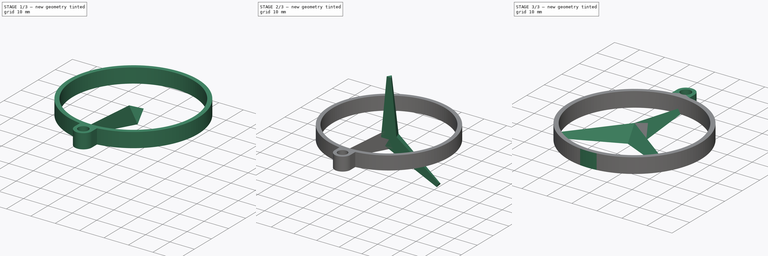
[diagram: build sequence overview — one tinted view per stage of 3, left to right]
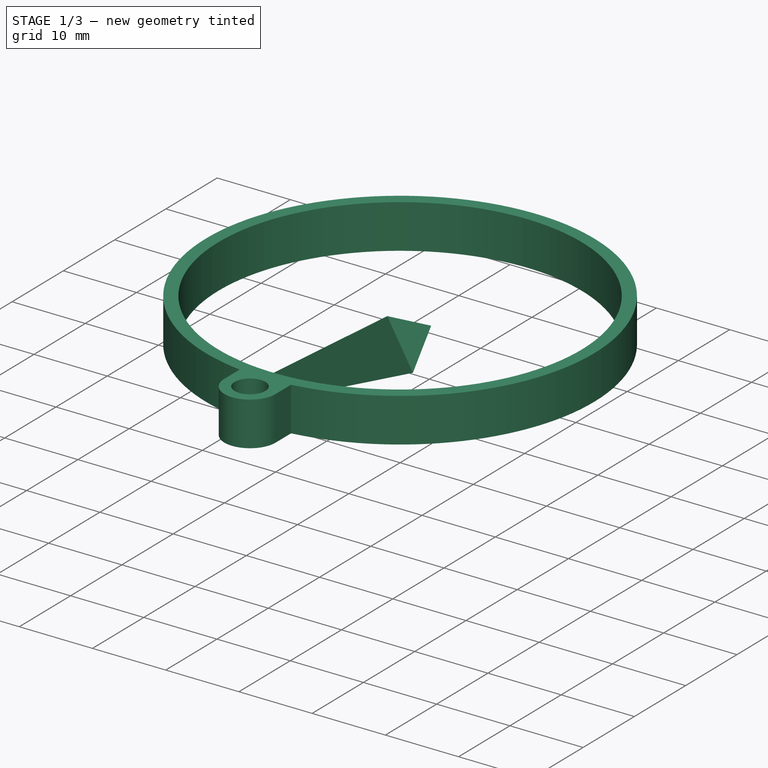
[diagram: stage 1 of 3 — iso view after this stage's code; geometry added in this stage tinted green]
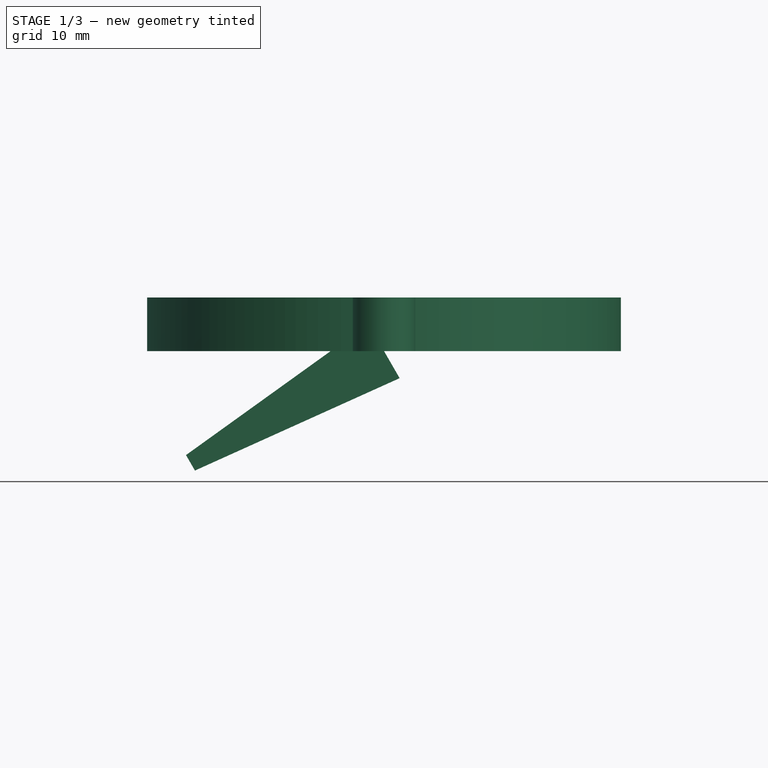
[diagram: stage 1 of 3 — front view after this stage's code; geometry added in this stage tinted green]
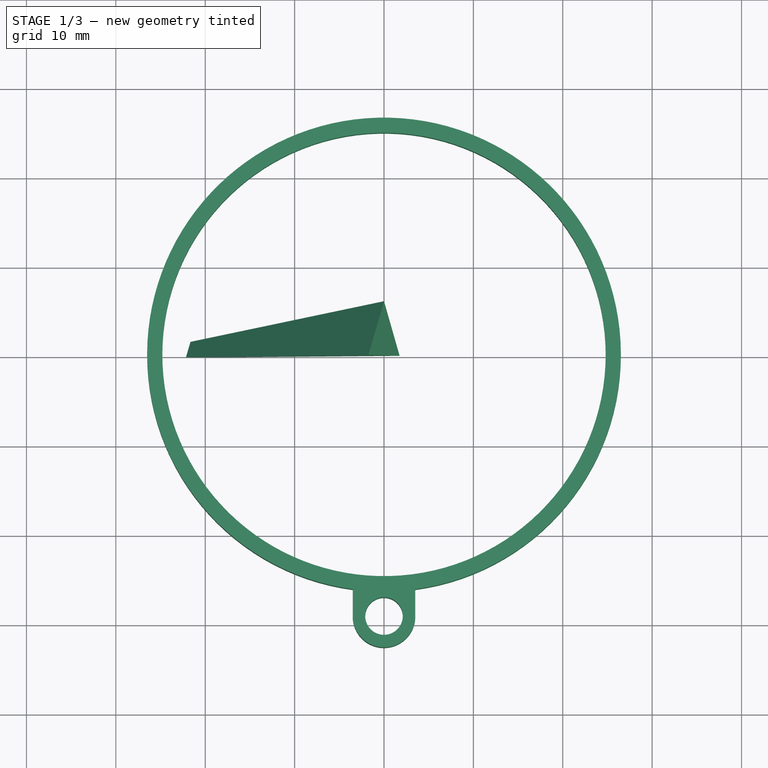
[diagram: stage 1 of 3 — top view after this stage's code; geometry added in this stage tinted green]
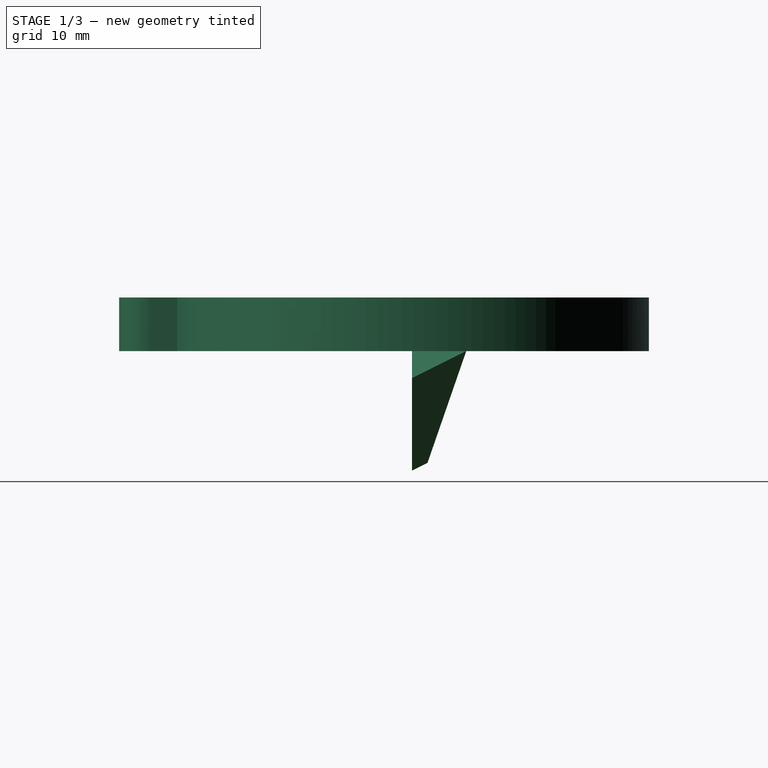
[diagram: stage 1 of 3 — right view after this stage's code; geometry added in this stage tinted green]
FCSTD DOCUMENT  (FreeCAD 0.14R3700 (Git))
Label: Mercedes-Benz
License: CC-BY 3.0
LicenseURL: http://creativecommons.org/licenses/by/3.0/
objects: Sketcher::SketchObject×7, Part::Loft×3, Part::Feature×3, Part::MultiFuse×2, App::DocumentObjectGroup×2, PartDesign::Pad×1
note: 17 computed .brp shape members not serialized (recipe doc carries the construction recipe); baked Part::Feature solids carry a one-line shape summary decoded from their .brp

FEATURE [Sketcher::SketchObject] Sketch004
  Placement = pos=(0,0,25) rot=(0,0,1;0rad)
  sketch-geometry (3):
    g0: LineSegment StartX=-1 StartY=0 StartZ=0 EndX=1 EndY=0 EndZ=0
    g1: LineSegment StartX=1 StartY=0 StartZ=0 EndX=0 EndY=1.73205 EndZ=0
    g2: LineSegment StartX=0 StartY=1.73205 StartZ=0 EndX=-1 EndY=0 EndZ=0
  constraints (9):
    c: Coincident(g0,g1)
    c: Coincident(g1,g2)
    c: Coincident(g2,g0)
    c: Horizontal(g0)
    c: PointOnObject(g1,g-2)
    c: Symmetric(g0,g0,g-2)
    c: Equal(g2,g0)
    c: PointOnObject(g-1,g0)
    c: DistanceX(g0) = 2
FEATURE [Sketcher::SketchObject] Sketch005
  sketch-geometry (3):
    g0: LineSegment StartX=-3.5 StartY=0 StartZ=0 EndX=3.5 EndY=0 EndZ=0
    g1: LineSegment StartX=3.5 StartY=0 StartZ=0 EndX=0 EndY=6.06218 EndZ=0
    g2: LineSegment StartX=0 StartY=6.06218 StartZ=0 EndX=-3.5 EndY=0 EndZ=0
  constraints (9):
    c: Coincident(g0,g1)
    c: Coincident(g1,g2)
    c: Coincident(g2,g0)
    c: Horizontal(g0)
    c: PointOnObject(g1,g-2)
    c: Symmetric(g0,g0,g-2)
    c: PointOnObject(g-1,g0)
    c: Equal(g2,g0)
    c: DistanceX(g0) = 7
FEATURE [Part::Loft] Loft002  label="Arm3"
  Closed = false
  Placement = pos=(0,0,0) rot=(0,-1,0;2.0944rad)
  Ruled = false
  Sections = -> [Sketch005,Sketch004]
  Solid = true
FEATURE [Sketcher::SketchObject] Sketch006
  sketch-geometry (6):
    g0: Circle CenterX=0 CenterY=0 CenterZ=0 NormalX=0 NormalY=0 NormalZ=1 Radius=24.8
    g1: ArcOfCircle CenterX=0 CenterY=-29.2679 CenterZ=0 NormalX=0 NormalY=0 NormalZ=1 Radius=3.5 StartAngle=3.14159 EndAngle=6.28319
    g2: LineSegment StartX=-3.5 StartY=-26.2679 StartZ=0 EndX=-3.5 EndY=-29.2679 EndZ=0
    g3: LineSegment StartX=3.5 StartY=-26.2679 StartZ=0 EndX=3.5 EndY=-29.2679 EndZ=0
    g4: ArcOfCircle CenterX=0 CenterY=0 CenterZ=0 NormalX=0 NormalY=0 NormalZ=1 Radius=26.5 StartAngle=4.84485 EndAngle=10.8631
    g5: Circle CenterX=0 CenterY=-29.2679 CenterZ=0 NormalX=0 NormalY=0 NormalZ=1 Radius=2.1
  constraints (17):
    c: Coincident(g0,g-1)
    c: Radius(g0) = 24.8
    c: Radius(g1) = 3.5
    c: Vertical(g2)
    c: Vertical(g3)
    c: Symmetric(g1,g1,g-2)
    c: Coincident(g2,g1)
    c: Coincident(g3,g1)
    c: Equal(g2,g3)
    c: DistanceY(g2) = -3
    c: DistanceY(g1,g2) = 3
    c: Coincident(g-1,g4)
    c: Coincident(g3,g4)
    c: Coincident(g4,g2)
    c: Radius(g4) = 26.5
    c: Radius(g5) = 2.1
    c: Coincident(g5,g1)
FEATURE [PartDesign::Pad] Pad  label="Exterior"
  Length = 6
  Length2 = 100
  Sketch = -> Sketch006
  Type = 0
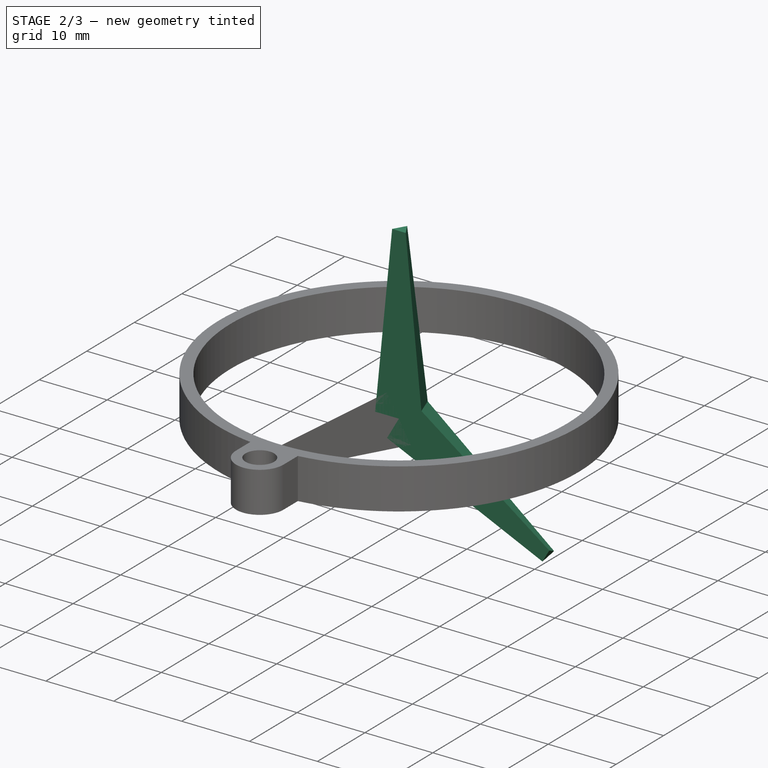
[diagram: stage 2 of 3 — iso view after this stage's code; geometry added in this stage tinted green]
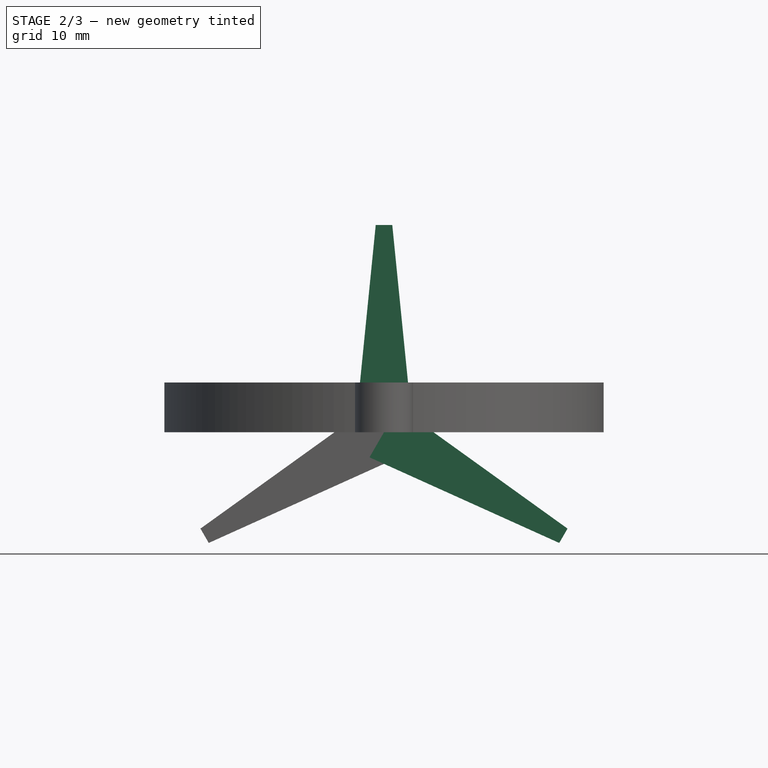
[diagram: stage 2 of 3 — front view after this stage's code; geometry added in this stage tinted green]
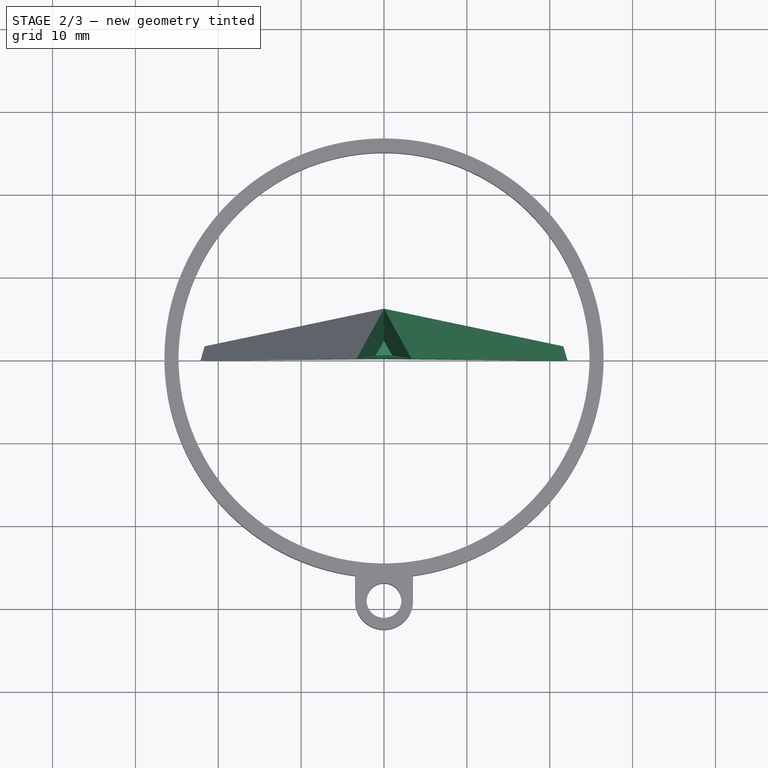
[diagram: stage 2 of 3 — top view after this stage's code; geometry added in this stage tinted green]
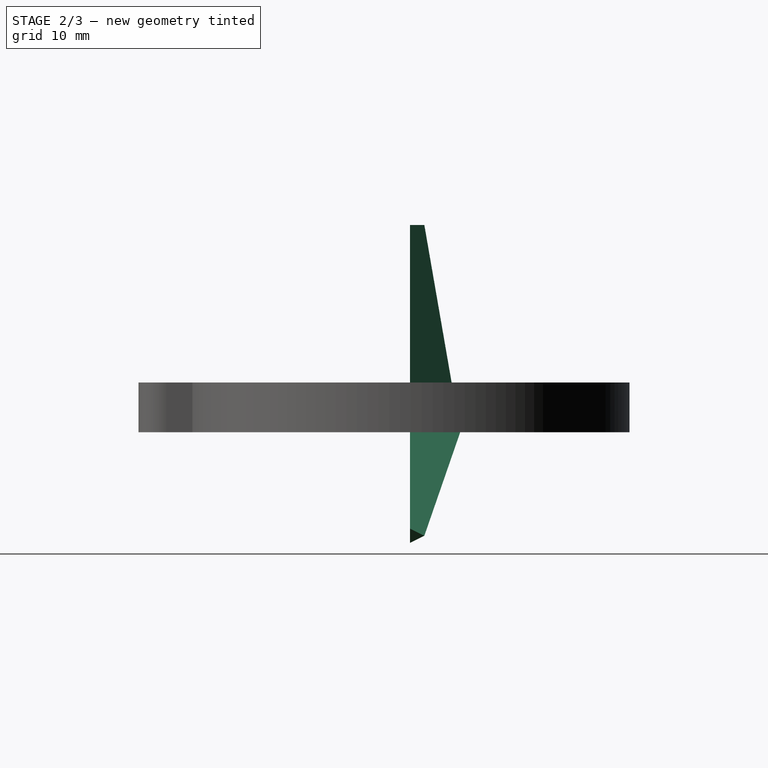
[diagram: stage 2 of 3 — right view after this stage's code; geometry added in this stage tinted green]
FEATURE [Sketcher::SketchObject] Sketch
  sketch-geometry (3):
    g0: LineSegment StartX=-3.5 StartY=0 StartZ=0 EndX=3.5 EndY=0 EndZ=0
    g1: LineSegment StartX=3.5 StartY=0 StartZ=0 EndX=0 EndY=6.06218 EndZ=0
    g2: LineSegment StartX=0 StartY=6.06218 StartZ=0 EndX=-3.5 EndY=0 EndZ=0
  constraints (9):
    c: Coincident(g0,g1)
    c: Coincident(g1,g2)
    c: Coincident(g2,g0)
    c: Horizontal(g0)
    c: PointOnObject(g1,g-2)
    c: Symmetric(g0,g0,g-2)
    c: PointOnObject(g-1,g0)
    c: Equal(g2,g0)
    c: DistanceX(g0) = 7
FEATURE [Sketcher::SketchObject] Sketch001
  Placement = pos=(0,0,25) rot=(0,0,1;0rad)
  sketch-geometry (3):
    g0: LineSegment StartX=-1 StartY=0 StartZ=0 EndX=1 EndY=0 EndZ=0
    g1: LineSegment StartX=1 StartY=0 StartZ=0 EndX=0 EndY=1.73205 EndZ=0
    g2: LineSegment StartX=0 StartY=1.73205 StartZ=0 EndX=-1 EndY=0 EndZ=0
  constraints (9):
    c: Coincident(g0,g1)
    c: Coincident(g1,g2)
    c: Coincident(g2,g0)
    c: Horizontal(g0)
    c: PointOnObject(g1,g-2)
    c: Symmetric(g0,g0,g-2)
    c: Equal(g2,g0)
    c: PointOnObject(g-1,g0)
    c: DistanceX(g0) = 2
FEATURE [Part::Loft] Loft  label="Arm1"
  Closed = false
  Ruled = false
  Sections = -> [Sketch,Sketch001]
  Solid = true
FEATURE [Sketcher::SketchObject] Sketch002
  Placement = pos=(0,0,25) rot=(0,0,1;0rad)
  sketch-geometry (3):
    g0: LineSegment StartX=-1 StartY=0 StartZ=0 EndX=1 EndY=0 EndZ=0
    g1: LineSegment StartX=1 StartY=0 StartZ=0 EndX=0 EndY=1.73205 EndZ=0
    g2: LineSegment StartX=0 StartY=1.73205 StartZ=0 EndX=-1 EndY=0 EndZ=0
  constraints (9):
    c: Coincident(g0,g1)
    c: Coincident(g1,g2)
    c: Coincident(g2,g0)
    c: Horizontal(g0)
    c: PointOnObject(g1,g-2)
    c: Symmetric(g0,g0,g-2)
    c: Equal(g2,g0)
    c: PointOnObject(g-1,g0)
    c: DistanceX(g0) = 2
FEATURE [Sketcher::SketchObject] Sketch003
  sketch-geometry (3):
    g0: LineSegment StartX=-3.5 StartY=0 StartZ=0 EndX=3.5 EndY=0 EndZ=0
    g1: LineSegment StartX=3.5 StartY=0 StartZ=0 EndX=0 EndY=6.06218 EndZ=0
    g2: LineSegment StartX=0 StartY=6.06218 StartZ=0 EndX=-3.5 EndY=0 EndZ=0
  constraints (9):
    c: Coincident(g0,g1)
    c: Coincident(g1,g2)
    c: Coincident(g2,g0)
    c: Horizontal(g0)
    c: PointOnObject(g1,g-2)
    c: Symmetric(g0,g0,g-2)
    c: PointOnObject(g-1,g0)
    c: Equal(g2,g0)
    c: DistanceX(g0) = 7
FEATURE [Part::Loft] Loft001  label="Arm2"
  Closed = false
  Placement = pos=(0,0,0) rot=(0,1,0;2.0944rad)
  Ruled = false
  Sections = -> [Sketch003,Sketch002]
  Solid = true
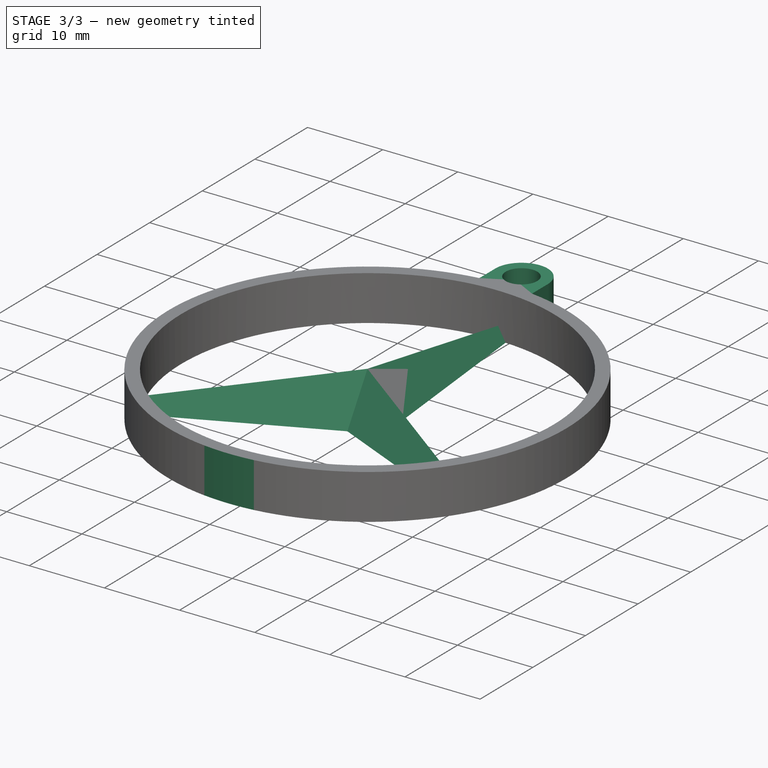
[diagram: stage 3 of 3 — iso view after this stage's code; geometry added in this stage tinted green]
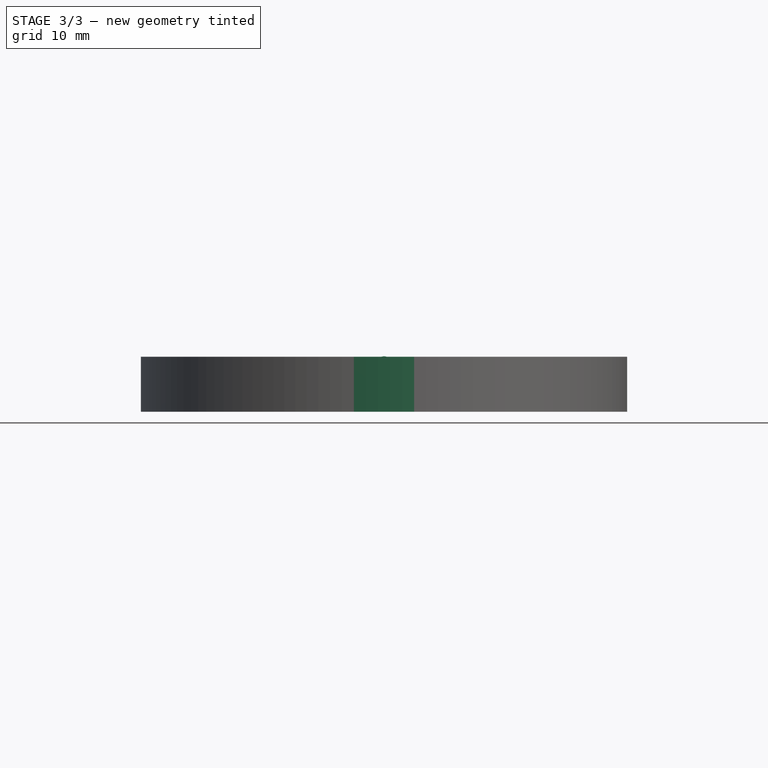
[diagram: stage 3 of 3 — front view after this stage's code; geometry added in this stage tinted green]
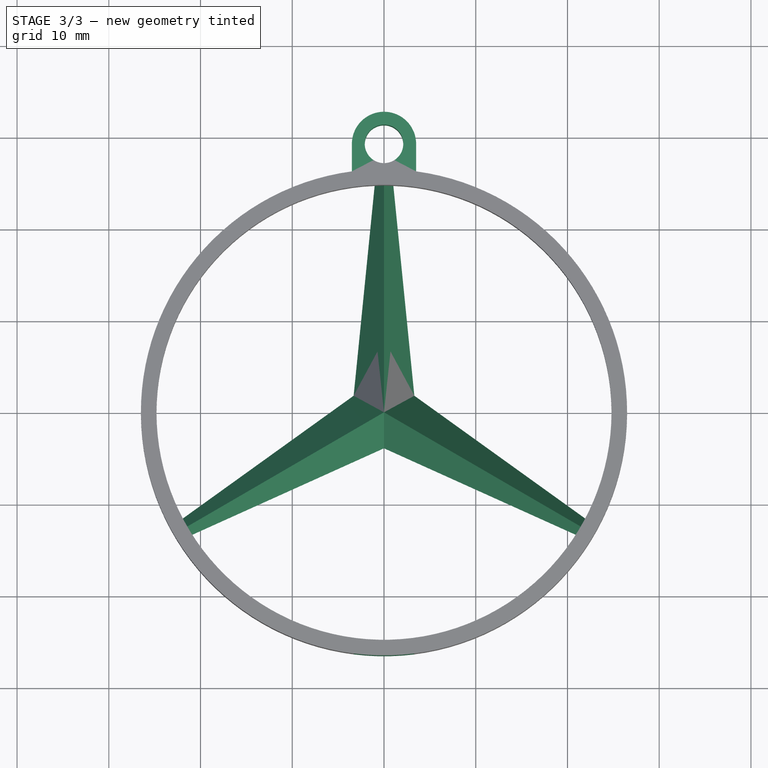
[diagram: stage 3 of 3 — top view after this stage's code; geometry added in this stage tinted green]
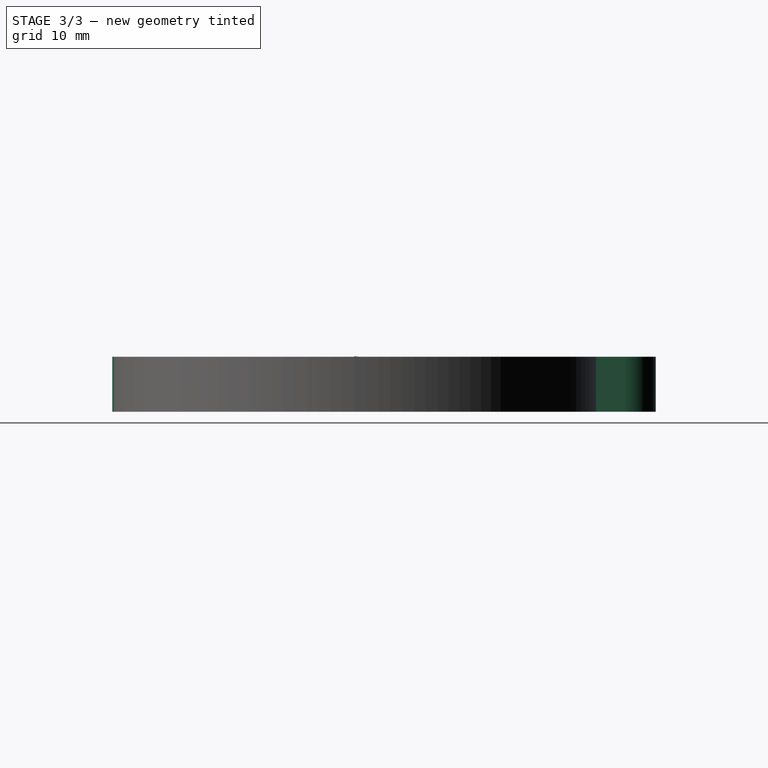
[diagram: stage 3 of 3 — right view after this stage's code; geometry added in this stage tinted green]
FEATURE [Part::MultiFuse] Fusion  label="Arms"
  Placement = pos=(0,0,0) rot=(1,0,0;1.5708rad)
  Shapes = -> [Loft,Loft001,Loft002]
FEATURE [Part::MultiFuse] Fusion001  label="Key-chain"
  Placement = pos=(0,0,0) rot=(0,0,1;3.14159rad)
  Shapes = -> [Pad,Fusion]
FEATURE [App::DocumentObjectGroup] Grupo  label="src"
  Group = -> [Fusion001]
FEATURE [Part::Feature] Cut  label="key-model"
  Placement = pos=(-5.46976,31.0266,0) rot=(0,0,1;0.517888rad)
  shape: bbox 49.82 x 36.6 x 2.3 mm, 44 faces (baked)
FEATURE [Part::Feature] Sweep  label="key-ring-model"
  Placement = pos=(-1.2,24.7546,1.6391) rot=(0.333333,0.881918,0.333333;1.69612rad)
  shape: bbox 3.31 x 27.02 x 26.33 mm, 4 faces (baked)
FEATURE [Part::Feature] Part__Feature  label="Mercedes-Benz-key-chain"
  Placement = pos=(0,-13,0) rot=(0,0,1;3.14159rad)
  shape: bbox 53 x 59.27 x 6.062 mm, 23 faces (baked)
FEATURE [App::DocumentObjectGroup] Grupo001  label="Assembly"
  Group = -> [Cut,Sweep,Part__Feature]
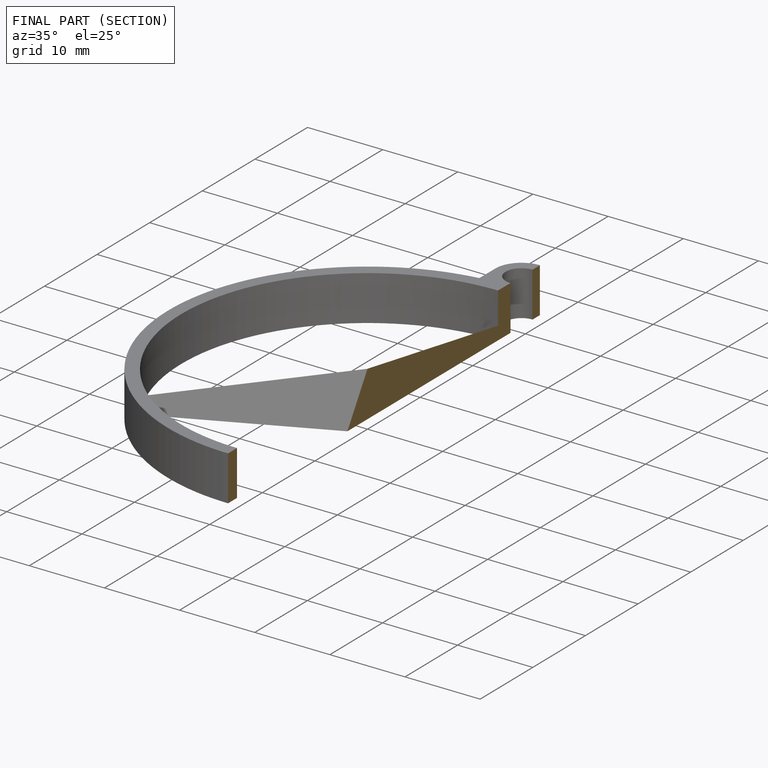
[diagram: finished part — half-section view (interior)]
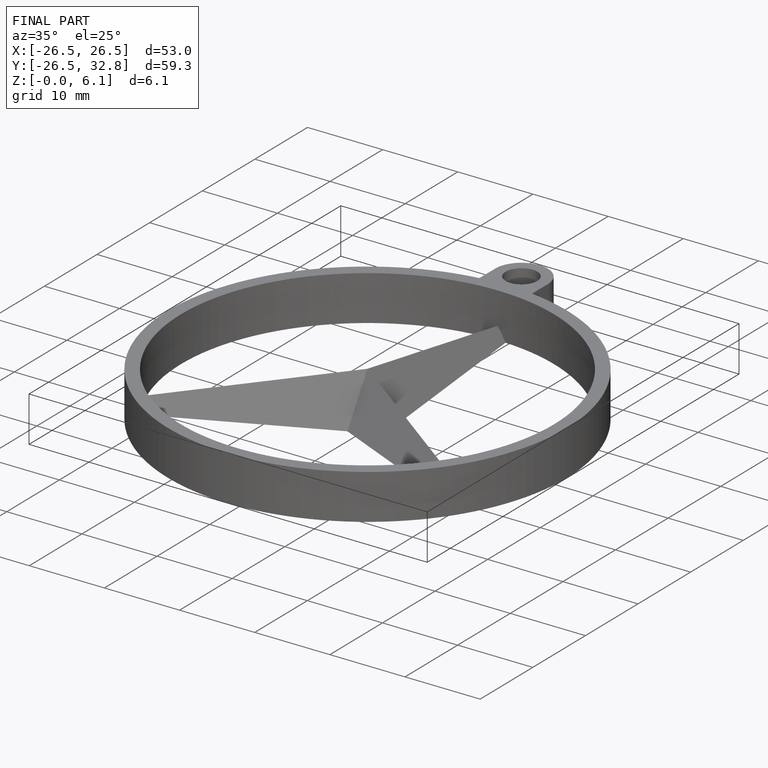
[diagram: finished part — iso view with bounding-box wireframe]
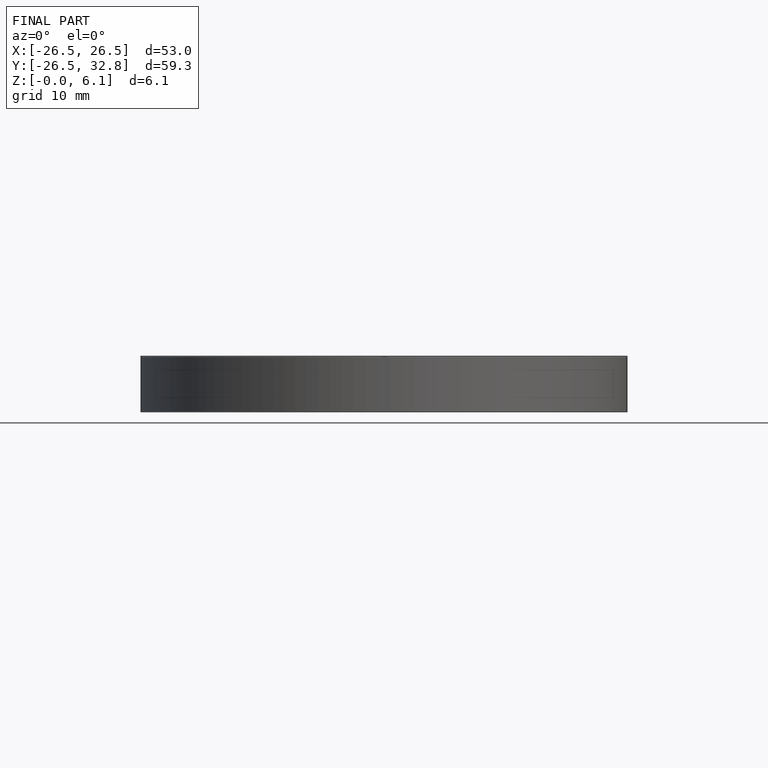
[diagram: finished part — front view with bounding-box wireframe]
